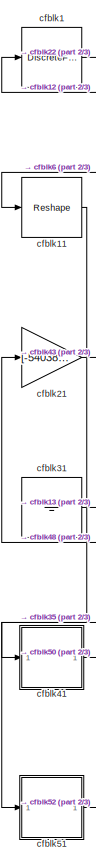
[diagram: root canvas - part 1/3, left side, full height]
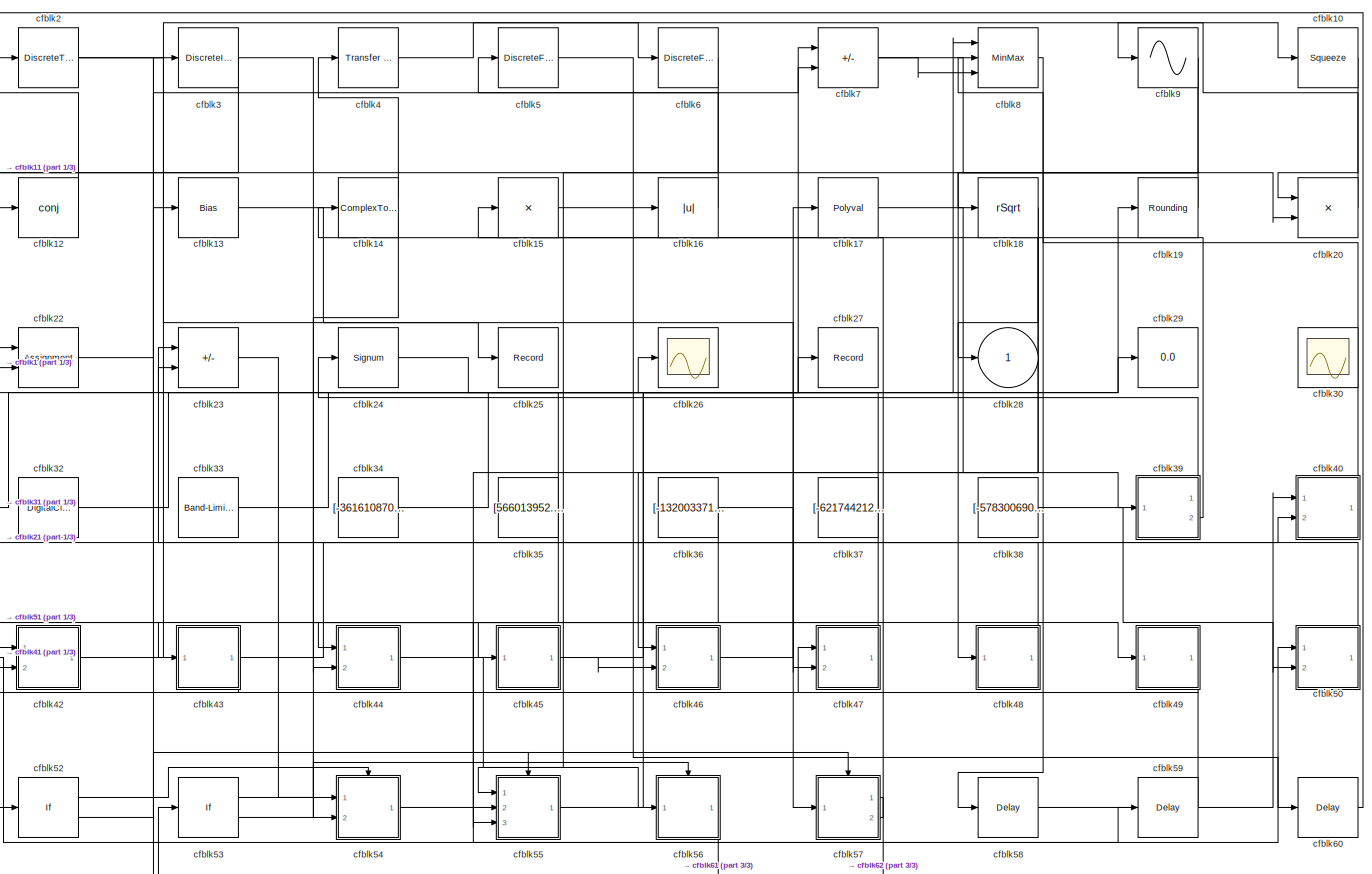
[diagram: root canvas - part 2/3, most of the canvas]
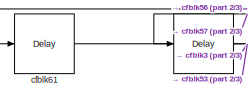
[diagram: root canvas - part 3/3, bottom left region]
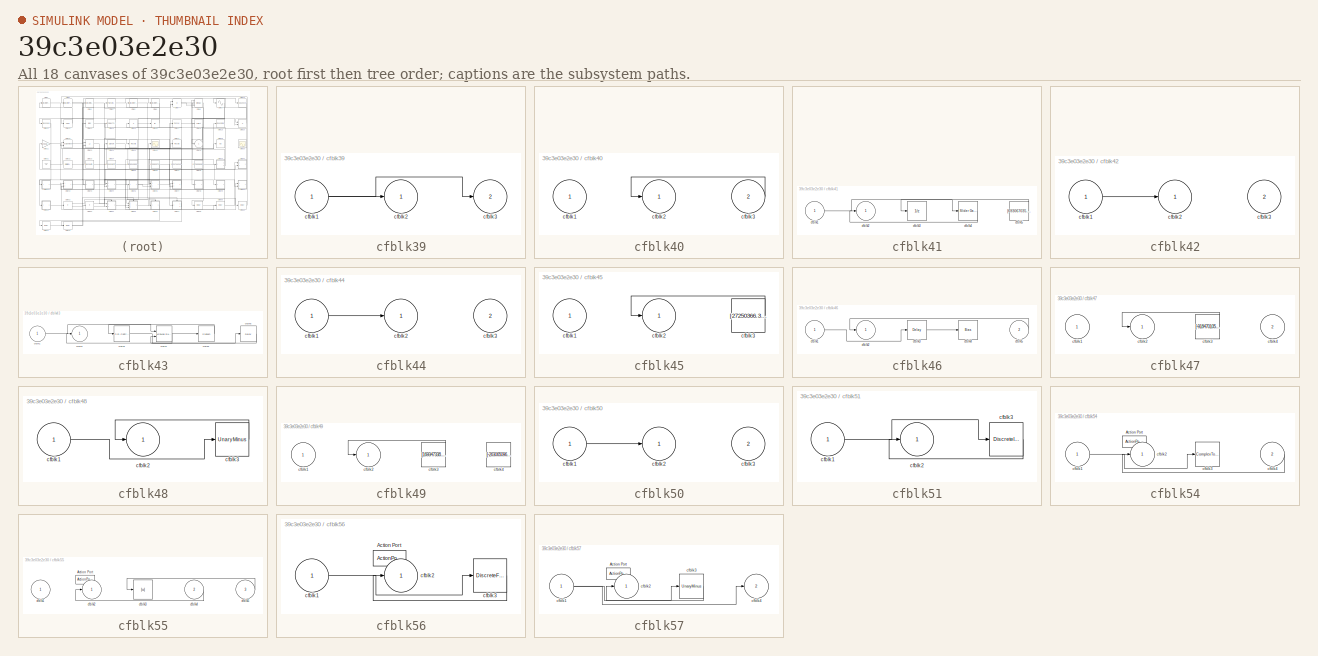
[diagram: thumbnail index - all 18 canvases of the model, root first then tree order]
MODEL slx_39c3e03e2e30
KIND model
CONFIG AbsTol = auto
CONFIG EnableMultiTasking = off
CONFIG FixedStep = auto
CONFIG MaxStep = auto
CONFIG MinStep = auto
CONFIG RelTol = 1e-3
CONFIG SampleTimeConstraint = Unconstrained
CONFIG SolverName = VariableStepAuto
CONFIG StartTime = 0.0
CONFIG StopTime = 10.0
BLOCK [DiscreteFir] cfblk1
  InputPortMap = u0
  OutputPortMap = o0
  Ports = [1, 1]
  SampleTime = 1
BLOCK [Squeeze] cfblk10
BLOCK [Reshape] cfblk11
  Ports = [1, 1]
BLOCK [Math] cfblk12
  Operator = conj
  Ports = [1, 1]
BLOCK [Bias] cfblk13
  Bias = [-387303943.676612]
  SaturateOnIntegerOverflow = off
BLOCK [ComplexToMagnitudeAngle] cfblk14
  Ports = [1, 2]
BLOCK [Product] cfblk15
  Inputs = *
  Ports = [1, 1]
BLOCK [Abs] cfblk16
  SaturateOnIntegerOverflow = off
BLOCK [Polyval] cfblk17
  Coefs = [ +2.081618890e-019, -1.441693666e-014, +4.719686976e-010, -8.536869453e-006, +1.621573104e-001, -8.087801117e+001 ]
BLOCK [Sqrt] cfblk18
  AlgorithmType = Newton-Raphson
  Operator = rSqrt
BLOCK [Rounding] cfblk19
BLOCK [DiscreteTransferFcn] cfblk2
  InputPortMap = u0
  Ports = [1, 1]
  SampleTime = 1
BLOCK [Product] cfblk20
  Ports = [2, 1]
BLOCK [Gain] cfblk21
  Gain = [-540385420.945365]
BLOCK [Assignment] cfblk22
  DiagnosticForDimensions = Warning
  IndexOptions = Index vector (dialog)
  Indices = 1
  OutputSizes = 1
  Ports = [2, 1]
BLOCK [Sum] cfblk23
  IconShape = rectangular
  Inputs = +-
  Ports = [2, 1]
BLOCK [Signum] cfblk24
BLOCK [Record] cfblk25
  FileSettingsInternal = {"entries":[{"content":{"excelSettings":{"content":{},"type":"Streamout.ExcelSettings"}},"type":"Streamout.FileSettingStorage","uuid":"4e7e3b95-72b2-4485-886b-8d009dfdaece"}],"packageUris":["http://schema.mathworks.com/mf0/streamout_blocks/R2020a"],"version":"1.0"}
  Ports = [1]
  SignalsInternal = {"entries":[{"content":{"signals":[{"content":{"blockPath":["sampleModel225/cfblk25"],"channel":[],"dimensions":[1],"domain":"sampleModel225/cfblk25","lineColor":"#edb120","plots":[1],"port":1,"sid":[""],"signalID":8807,"signalName":"cfblk2"},"type":"RecordBlkView.Signal","uuid":"caa7a7fe-cf03-4d92-84b3-6ee960b38914"}]},"type":"RecordBlkView.InputSignals","uuid":"f0579e01-41f7-419e-960d-229318a79f...<+96ch>
  VisualizationBindings = {"sparklinesplugin":{"info":[{"bindingParametersList":[],"subplotID":1}]}}
BLOCK [Scope] cfblk26
  Floating = off
  NumInputPorts = 1
  Ports = [1]
BLOCK [Record] cfblk27
  FileSettingsInternal = {"entries":[{"content":{"excelSettings":{"content":{},"type":"Streamout.ExcelSettings"}},"type":"Streamout.FileSettingStorage","uuid":"49384f4d-e1c6-4fc9-897d-458b70a04d99"}],"packageUris":["http://schema.mathworks.com/mf0/streamout_blocks/R2020a"],"version":"1.0"}
  Ports = [1]
  SignalsInternal = {"entries":[{"content":{"signals":[{"content":{"blockPath":["sampleModel225/cfblk27"],"channel":[],"dimensions":[1],"domain":"sampleModel225/cfblk27","lineColor":"#7e2f8e","plots":[1],"port":1,"sid":[""],"signalID":8811,"signalName":"cfblk34"},"type":"RecordBlkView.Signal","uuid":"c564fc10-3473-46ad-84b2-5b0f433de686"}]},"type":"RecordBlkView.InputSignals","uuid":"7b61474a-02df-4bbb-8ab8-049155fb1...<+97ch>
  VisualizationBindings = {"sparklinesplugin":{"info":[{"bindingParametersList":[],"subplotID":1}]}}
BLOCK [Outport] cfblk28
BLOCK [Display] cfblk29
  Decimation = 1
  Ports = [1]
BLOCK [DiscreteIntegrator] cfblk3
  ICPrevOutput = DiscIntNeverNeededParam
  ICPrevScaledInput = DiscIntNeverNeededParam
  InitialConditionSetting = Auto
  Ports = [1, 1]
BLOCK [Scope] cfblk30
  Floating = on
  NumInputPorts = 1
  Ports = []
BLOCK [Ground] cfblk31
BLOCK [DigitalClock] cfblk32
BLOCK [Reference] cfblk33  REF=simulink/Sources/Band-Limited
White Noise
  Ports = [0, 1]
  SourceBlock = simulink/Sources/Band-Limited\nWhite Noise
  SourceProductBaseCode = SL
  SourceType = Band-Limited White Noise.
BLOCK [Constant] cfblk34
  SampleTime = 1
  Value = [-361610870.549279]
BLOCK [Constant] cfblk35
  SampleTime = 1
  Value = [566013952.379853]
BLOCK [Constant] cfblk36
  SampleTime = 1
  Value = [-132003371.365610]
BLOCK [Constant] cfblk37
  SampleTime = 1
  Value = [-621744212.134158]
BLOCK [Constant] cfblk38
  SampleTime = 1
  Value = [-578300690.109726]
BLOCK [SubSystem] cfblk39
  Ports = [1, 2]
  RequestExecContextInheritance = off
BLOCK [Inport] cfblk39/cfblk1
BLOCK [Outport] cfblk39/cfblk2
BLOCK [Outport] cfblk39/cfblk3
  Port = 2
BLOCK [Reference] cfblk4  REF=simulink/Discrete/Transfer Fcn
First Order
  Ports = [1, 1]
  SourceBlock = simulink/Discrete/Transfer Fcn\nFirst Order
  SourceProductBaseCode = SL
  SourceType = First Order Transfer Fcn
BLOCK [SubSystem] cfblk40
  Ports = [2, 1]
  RequestExecContextInheritance = off
BLOCK [Inport] cfblk40/cfblk1
BLOCK [Outport] cfblk40/cfblk2
BLOCK [Inport] cfblk40/cfblk3
  Port = 2
BLOCK [SubSystem] cfblk41
  Ports = [1, 1]
  RequestExecContextInheritance = off
BLOCK [Inport] cfblk41/cfblk1
BLOCK [Outport] cfblk41/cfblk2
BLOCK [UnitDelay] cfblk41/cfblk3
  HasFrameUpgradeWarning = on
BLOCK [Reference] cfblk41/cfblk4  REF=simulink/Math
Operations/Slider
Gain
  Ports = [1, 1]
  SourceBlock = simulink/Math\nOperations/Slider\nGain
  SourceProductBaseCode = SL
  SourceType = Slider Gain
BLOCK [Constant] cfblk41/cfblk5
  SampleTime = 1
  Value = [693067035.483691]
BLOCK [SubSystem] cfblk42
  Ports = [2, 1]
  RequestExecContextInheritance = off
BLOCK [Inport] cfblk42/cfblk1
BLOCK [Outport] cfblk42/cfblk2
BLOCK [Inport] cfblk42/cfblk3
  Port = 2
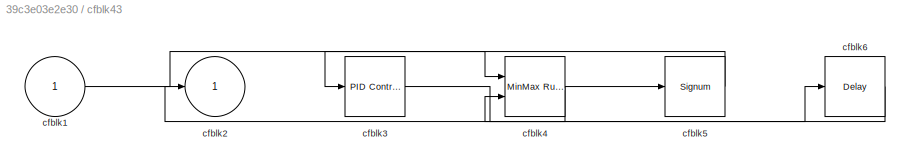
BLOCK [SubSystem] cfblk43
  Ports = [1, 1]
  RequestExecContextInheritance = off
BLOCK [Inport] cfblk43/cfblk1
BLOCK [Outport] cfblk43/cfblk2
BLOCK [Reference] cfblk43/cfblk3  REF=slpidlib/PID Controller
  Ports = [1, 1]
  SourceBlock = slpidlib/PID Controller
  SourceProductBaseCode = SL
  SourceType = PID 1dof
BLOCK [Reference] cfblk43/cfblk4  REF=simulink/Math
Operations/MinMax
Running
Resettable
  Ports = [2, 1]
  SourceBlock = simulink/Math\nOperations/MinMax\nRunning\nResettable
  SourceProductBaseCode = SL
  SourceType = MinMax Running Resettable
BLOCK [Signum] cfblk43/cfblk5
BLOCK [Delay] cfblk43/cfblk6
  InputPortMap = u0
  Ports = [1, 1]
  SampleTime = 1
BLOCK [SubSystem] cfblk44
  Ports = [2, 1]
  RequestExecContextInheritance = off
BLOCK [Inport] cfblk44/cfblk1
BLOCK [Outport] cfblk44/cfblk2
BLOCK [Inport] cfblk44/cfblk3
  Port = 2
BLOCK [SubSystem] cfblk45
  Ports = [1, 1]
  RequestExecContextInheritance = off
BLOCK [Inport] cfblk45/cfblk1
BLOCK [Outport] cfblk45/cfblk2
BLOCK [Constant] cfblk45/cfblk3
  SampleTime = 1
  Value = [27250366.343216]
BLOCK [SubSystem] cfblk46
  Ports = [2, 1]
  RequestExecContextInheritance = off
BLOCK [Inport] cfblk46/cfblk1
BLOCK [Outport] cfblk46/cfblk2
BLOCK [Delay] cfblk46/cfblk3
  InputPortMap = u0
  Ports = [1, 1]
  SampleTime = 1
BLOCK [Bias] cfblk46/cfblk4
  Bias = [-84174624.531527]
  SaturateOnIntegerOverflow = off
BLOCK [Inport] cfblk46/cfblk5
  Port = 2
BLOCK [SubSystem] cfblk47
  Ports = [2, 1]
  RequestExecContextInheritance = off
BLOCK [Inport] cfblk47/cfblk1
BLOCK [Outport] cfblk47/cfblk2
BLOCK [Constant] cfblk47/cfblk3
  SampleTime = 1
  Value = [-918470105.365336]
BLOCK [Inport] cfblk47/cfblk4
  Port = 2
BLOCK [SubSystem] cfblk48
  Ports = [1, 1]
  RequestExecContextInheritance = off
BLOCK [Inport] cfblk48/cfblk1
BLOCK [Outport] cfblk48/cfblk2
BLOCK [UnaryMinus] cfblk48/cfblk3
BLOCK [SubSystem] cfblk49
  Ports = [1, 1]
  RequestExecContextInheritance = off
BLOCK [Inport] cfblk49/cfblk1
BLOCK [Outport] cfblk49/cfblk2
BLOCK [Constant] cfblk49/cfblk3
  SampleTime = 1
  Value = [169347338.272985]
BLOCK [Constant] cfblk49/cfblk4
  SampleTime = 1
  Value = [-263065096.095558]
BLOCK [DiscreteFir] cfblk5
  InputPortMap = u0
  OutputPortMap = o0
  Ports = [1, 1]
  SampleTime = 1
BLOCK [SubSystem] cfblk50
  Ports = [2, 1]
  RequestExecContextInheritance = off
BLOCK [Inport] cfblk50/cfblk1
BLOCK [Outport] cfblk50/cfblk2
BLOCK [Inport] cfblk50/cfblk3
  Port = 2
BLOCK [SubSystem] cfblk51
  Ports = [1, 1]
  RequestExecContextInheritance = off
BLOCK [Inport] cfblk51/cfblk1
BLOCK [Outport] cfblk51/cfblk2
BLOCK [DiscreteIntegrator] cfblk51/cfblk3
  ICPrevOutput = DiscIntNeverNeededParam
  ICPrevScaledInput = DiscIntNeverNeededParam
  InitialConditionSetting = Auto
  Ports = [1, 1]
BLOCK [If] cfblk52
  IfExpression = u1 >= 0
  Ports = [1, 2]
  SampleTime = 1
BLOCK [If] cfblk53
  IfExpression = u1 >= 0
  Ports = [1, 2]
  SampleTime = 1
BLOCK [SubSystem] cfblk54
  Ports = [2, 1, 0, 0, 0, 0, 0, 1]
  RequestExecContextInheritance = off
  TreatAsAtomicUnit = on
BLOCK [ActionPort] cfblk54/Action Port
  ActionPortLabel = if(u1 >= 0)
BLOCK [Inport] cfblk54/cfblk1
BLOCK [Outport] cfblk54/cfblk2
BLOCK [ComplexToMagnitudeAngle] cfblk54/cfblk3
  Ports = [1, 2]
BLOCK [Inport] cfblk54/cfblk4
  Port = 2
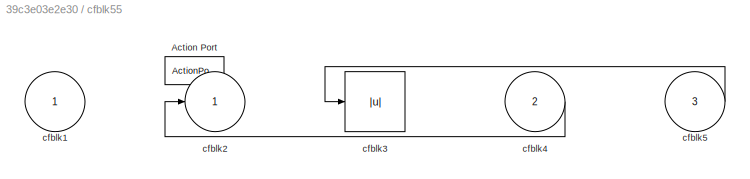
BLOCK [SubSystem] cfblk55
  Ports = [3, 1, 0, 0, 0, 0, 0, 1]
  RequestExecContextInheritance = off
  TreatAsAtomicUnit = on
BLOCK [ActionPort] cfblk55/Action Port
  ActionPortLabel = else
BLOCK [Inport] cfblk55/cfblk1
BLOCK [Outport] cfblk55/cfblk2
BLOCK [Abs] cfblk55/cfblk3
  SaturateOnIntegerOverflow = off
BLOCK [Inport] cfblk55/cfblk4
  Port = 2
BLOCK [Inport] cfblk55/cfblk5
  Port = 3
BLOCK [SubSystem] cfblk56
  Ports = [1, 1, 0, 0, 0, 0, 0, 1]
  RequestExecContextInheritance = off
  TreatAsAtomicUnit = on
BLOCK [ActionPort] cfblk56/Action Port
  ActionPortLabel = if(u1 >= 0)
BLOCK [Inport] cfblk56/cfblk1
BLOCK [Outport] cfblk56/cfblk2
BLOCK [DiscreteFilter] cfblk56/cfblk3
  InputPortMap = u0
  Ports = [1, 1]
BLOCK [SubSystem] cfblk57
  Ports = [1, 2, 0, 0, 0, 0, 0, 1]
  RequestExecContextInheritance = off
  TreatAsAtomicUnit = on
BLOCK [ActionPort] cfblk57/Action Port
  ActionPortLabel = else
BLOCK [Inport] cfblk57/cfblk1
BLOCK [Outport] cfblk57/cfblk2
BLOCK [UnaryMinus] cfblk57/cfblk3
BLOCK [Outport] cfblk57/cfblk4
  Port = 2
BLOCK [Delay] cfblk58
  InputPortMap = u0
  Ports = [1, 1]
  SampleTime = 1
BLOCK [Delay] cfblk59
  InputPortMap = u0
  Ports = [1, 1]
  SampleTime = 1
BLOCK [DiscreteFilter] cfblk6
  InputPortMap = u0
  Ports = [1, 1]
  SampleTime = 1
BLOCK [Delay] cfblk60
  InputPortMap = u0
  Ports = [1, 1]
  SampleTime = 1
BLOCK [Delay] cfblk61
  InputPortMap = u0
  Ports = [1, 1]
  SampleTime = 1
BLOCK [Delay] cfblk62
  InputPortMap = u0
  Ports = [1, 1]
  SampleTime = 1
BLOCK [Sum] cfblk7
  IconShape = rectangular
  Inputs = +-
  Ports = [2, 1]
BLOCK [MinMax] cfblk8
  Function = max
  Inputs = 3
  Ports = [3, 1]
BLOCK [Sin] cfblk9
  Ports = [1, 1]
  SampleTime = 0
  TimeSource = Use external signal
LINE cfblk10:1 -> cfblk20:1
LINE cfblk11:1 -> cfblk41:1
LINE cfblk12:1 -> cfblk1:1
LINE cfblk13:1 -> cfblk57:1
LINE cfblk14:1 -> cfblk4:1
LINE cfblk14:2 -> cfblk54:2
LINE cfblk15:1 -> cfblk16:1
LINE cfblk16:1 -> cfblk5:1
LINE cfblk17:1 -> cfblk39:1
NET cfblk18:1 -> cfblk28:1, cfblk46:1, cfblk55:2
LINE cfblk19:1 -> cfblk18:1
LINE cfblk1:1 -> cfblk22:2
LINE cfblk20:1 -> cfblk9:1
LINE cfblk21:1 -> cfblk43:1
LINE cfblk22:1 -> cfblk7:1
LINE cfblk23:1 -> cfblk54:1
LINE cfblk24:1 -> cfblk26:1
NET cfblk2:1 -> cfblk25:1, cfblk45:1
LINE cfblk31:1 -> cfblk13:1
LINE cfblk32:1 -> cfblk8:1
LINE cfblk33:1 -> cfblk19:1
LINE cfblk34:1 -> cfblk27:1
NET cfblk35:1 -> cfblk23:2, cfblk51:1
NET cfblk36:1 -> cfblk44:2, cfblk47:2
NET cfblk37:1 -> cfblk22:1, cfblk55:3
LINE cfblk38:1 -> cfblk50:2
NET cfblk39/cfblk1:1 -> cfblk39/cfblk2:1, cfblk39/cfblk3:1
LINE cfblk39:1 -> cfblk24:1
LINE cfblk39:2 -> cfblk15:1
NET cfblk3:1 -> cfblk12:1, cfblk49:1
LINE cfblk40/cfblk3:1 -> cfblk40/cfblk2:1
LINE cfblk40:1 -> cfblk8:2
LINE cfblk41/cfblk1:1 -> cfblk41/cfblk4:1
LINE cfblk41/cfblk4:1 -> cfblk41/cfblk2:1
LINE cfblk41/cfblk5:1 -> cfblk41/cfblk3:1
LINE cfblk41:1 -> cfblk50:1
LINE cfblk42/cfblk1:1 -> cfblk42/cfblk2:1
LINE cfblk42:1 -> cfblk6:1
LINE cfblk43/cfblk1:1 -> cfblk43/cfblk4:1
LINE cfblk43/cfblk3:1 -> cfblk43/cfblk6:1
NET cfblk43/cfblk4:1 -> cfblk43/cfblk2:1, cfblk43/cfblk5:1
LINE cfblk43/cfblk5:1 -> cfblk43/cfblk3:1
LINE cfblk43/cfblk6:1 -> cfblk43/cfblk4:2
NET cfblk43:1 -> cfblk40:2, cfblk42:2
LINE cfblk44/cfblk1:1 -> cfblk44/cfblk2:1
LINE cfblk44:1 -> cfblk56:1
LINE cfblk45/cfblk3:1 -> cfblk45/cfblk2:1
NET cfblk45:1 -> cfblk46:2, cfblk7:2
LINE cfblk46/cfblk1:1 -> cfblk46/cfblk3:1
LINE cfblk46/cfblk3:1 -> cfblk46/cfblk4:1
LINE cfblk46/cfblk5:1 -> cfblk46/cfblk2:1
LINE cfblk46:1 -> cfblk17:1
LINE cfblk47/cfblk3:1 -> cfblk47/cfblk2:1
LINE cfblk47:1 -> cfblk44:1
LINE cfblk48/cfblk1:1 -> cfblk48/cfblk3:1
LINE cfblk48/cfblk3:1 -> cfblk48/cfblk2:1
LINE cfblk48:1 -> cfblk21:1
LINE cfblk49/cfblk3:1 -> cfblk49/cfblk2:1
LINE cfblk49:1 -> cfblk47:1
LINE cfblk4:1 -> cfblk10:1
LINE cfblk50/cfblk1:1 -> cfblk50/cfblk2:1
LINE cfblk50:1 -> cfblk23:1
LINE cfblk51/cfblk1:1 -> cfblk51/cfblk3:1
LINE cfblk51/cfblk3:1 -> cfblk51/cfblk2:1
LINE cfblk51:1 -> cfblk52:1
LINE cfblk52:1 -> cfblk54:ifaction
LINE cfblk52:2 -> cfblk55:ifaction
LINE cfblk53:1 -> cfblk56:ifaction
LINE cfblk53:2 -> cfblk57:ifaction
LINE cfblk54/cfblk1:1 -> cfblk54/cfblk3:1
LINE cfblk54/cfblk4:1 -> cfblk54/cfblk2:1
LINE cfblk54:1 -> cfblk59:1
LINE cfblk55/cfblk4:1 -> cfblk55/cfblk2:1
LINE cfblk55/cfblk5:1 -> cfblk55/cfblk3:1
LINE cfblk55:1 -> cfblk29:1
LINE cfblk56/cfblk1:1 -> cfblk56/cfblk3:1
LINE cfblk56/cfblk3:1 -> cfblk56/cfblk2:1
LINE cfblk56:1 -> cfblk61:1
NET cfblk57/cfblk1:1 -> cfblk57/cfblk3:1, cfblk57/cfblk4:1
LINE cfblk57/cfblk3:1 -> cfblk57/cfblk2:1
LINE cfblk57:1 -> cfblk62:1
LINE cfblk57:2 -> cfblk14:1
LINE cfblk58:1 -> cfblk40:1
LINE cfblk59:1 -> cfblk42:1
LINE cfblk5:1 -> cfblk60:1
LINE cfblk60:1 -> cfblk2:1
LINE cfblk61:1 -> cfblk3:1
LINE cfblk62:1 -> cfblk53:1
LINE cfblk6:1 -> cfblk11:1
NET cfblk7:1 -> cfblk20:2, cfblk8:3
LINE cfblk8:1 -> cfblk58:1
NET cfblk9:1 -> cfblk48:1, cfblk55:1
note: NET lines group one-source signal fan-out (src -> all destinations, sorted); 1:1 wires keep LINE
